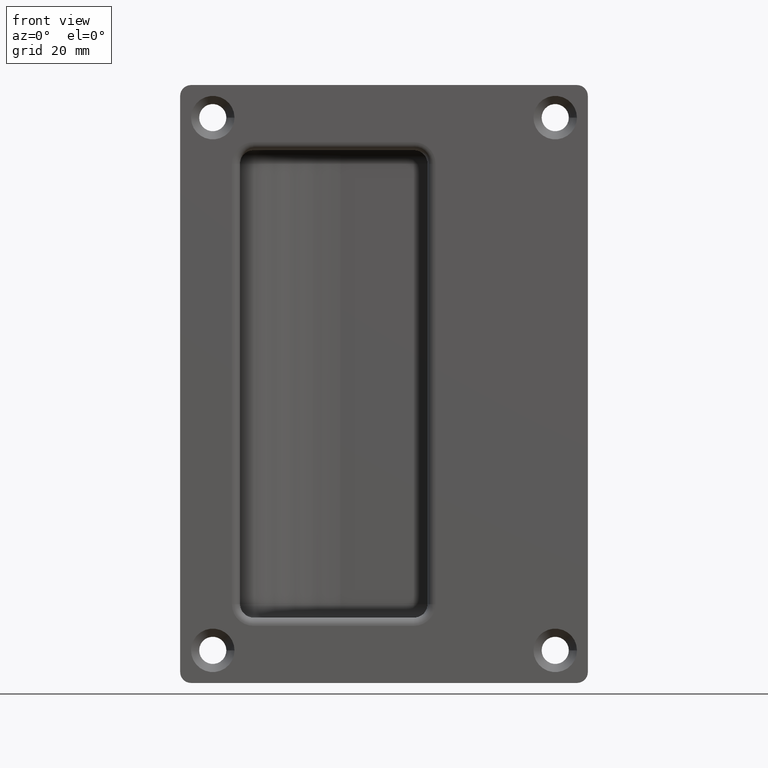
[diagram: clean part render]
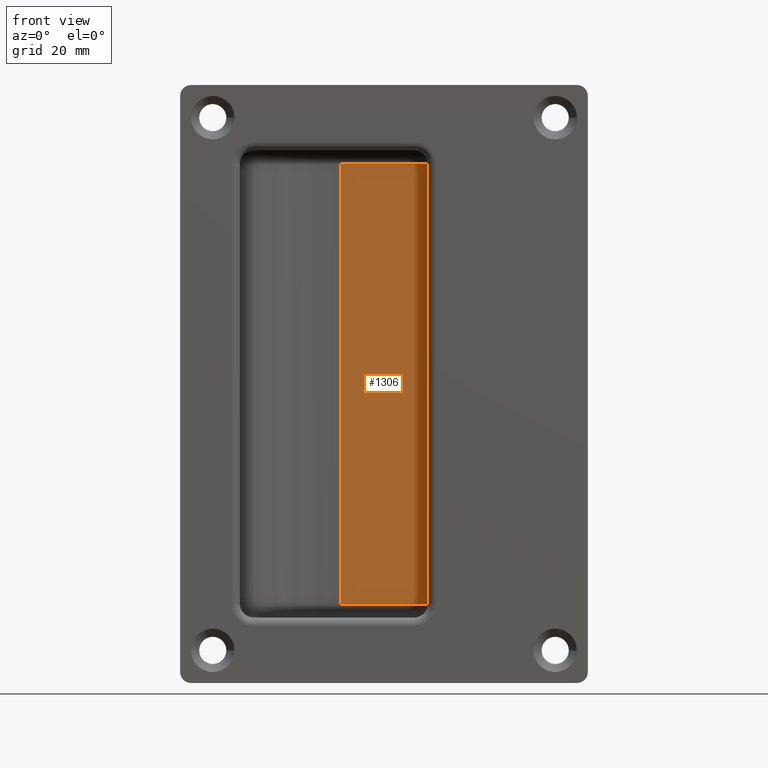
[diagram: same view with one face highlighted and labeled with its STEP entity id]
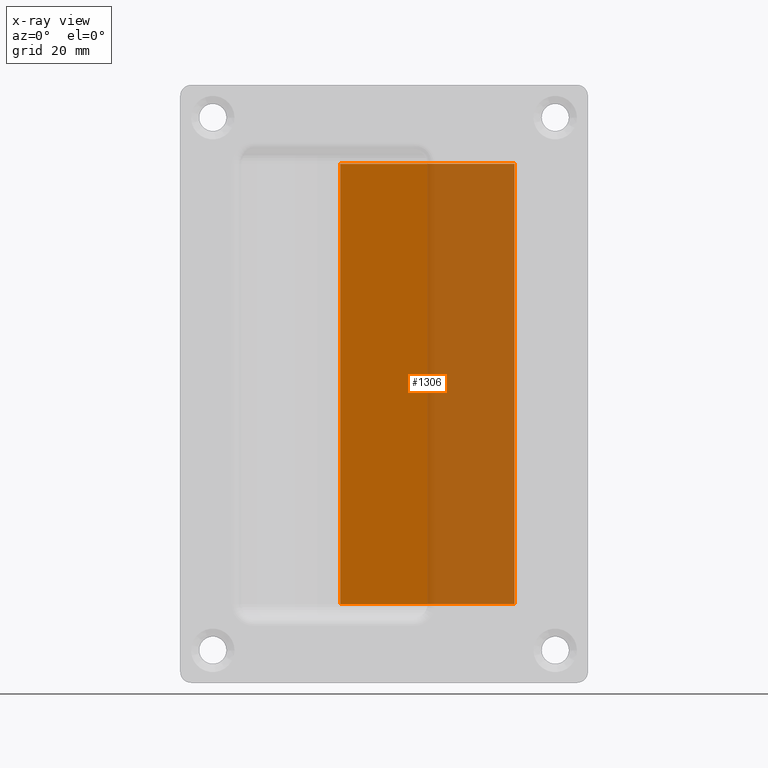
[diagram: x-ray of the same camera — body ghosted, the highlighted face saturated]
A machine part, front view. The second image highlights one B-rep face of the part: STEP entity #1306.
The next image is the same camera in x-ray: the body ghosted, the highlighted face saturated — about 50% of this face is hidden behind the body in this view.
In plain terms, the highlighted planar face has unit normal (-0, 1, 0).
Its self-contained STEP definition (entity closure, byte-faithful):
#48=PLANE('',#1416);
#90=LINE('',#2113,#186);
#91=LINE('',#2115,#187);
#92=LINE('',#2117,#188);
#93=LINE('',#2118,#189);
#186=VECTOR('',#1657,32.);
#187=VECTOR('',#1658,81.);
#188=VECTOR('',#1659,32.);
#189=VECTOR('',#1660,81.);
#310=FACE_OUTER_BOUND('',#395,.T.);
#395=EDGE_LOOP('',(#958,#959,#960,#961));
#609=VERTEX_POINT('',#2111);
#610=VERTEX_POINT('',#2112);
#611=VERTEX_POINT('',#2114);
#612=VERTEX_POINT('',#2116);
#741=EDGE_CURVE('',#609,#610,#90,.T.);
#742=EDGE_CURVE('',#610,#611,#91,.T.);
#743=EDGE_CURVE('',#611,#612,#92,.T.);
#744=EDGE_CURVE('',#609,#612,#93,.T.);
#958=ORIENTED_EDGE('',*,*,#741,.T.);
#959=ORIENTED_EDGE('',*,*,#742,.T.);
#960=ORIENTED_EDGE('',*,*,#743,.T.);
#961=ORIENTED_EDGE('',*,*,#744,.F.);
#1306=ADVANCED_FACE('',(#310),#48,.F.);
#1416=AXIS2_PLACEMENT_3D('',#2110,#1655,#1656);
#1655=DIRECTION('center_axis',(-2.77555756156289E-16,1.,0.));
#1656=DIRECTION('ref_axis',(-1.,-3.5527136788005E-16,0.));
#1657=DIRECTION('',(1.,2.77555756156289E-16,0.));
#1658=DIRECTION('',(0.,0.,1.));
#1659=DIRECTION('',(-1.,-2.77555756156289E-16,0.));
#1660=DIRECTION('',(0.,0.,1.));
#2110=CARTESIAN_POINT('Origin',(51.,17.,0.));
#2111=CARTESIAN_POINT('',(19.,17.,-40.5));
#2112=CARTESIAN_POINT('',(51.,17.,-40.5));
#2113=CARTESIAN_POINT('',(39.9852925297952,17.,-40.5));
#2114=CARTESIAN_POINT('',(51.,17.,40.5));
#2115=CARTESIAN_POINT('',(51.,17.,0.));
#2116=CARTESIAN_POINT('',(19.,17.,40.5));
#2117=CARTESIAN_POINT('',(39.9852925297952,17.,40.5));
#2118=CARTESIAN_POINT('',(19.,17.,0.));